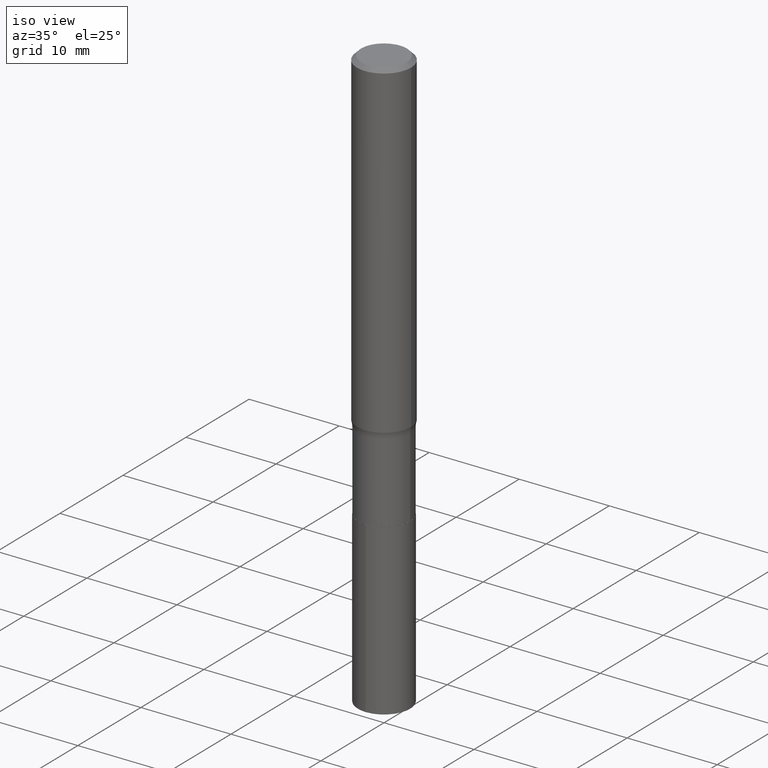
[diagram: clean part render]
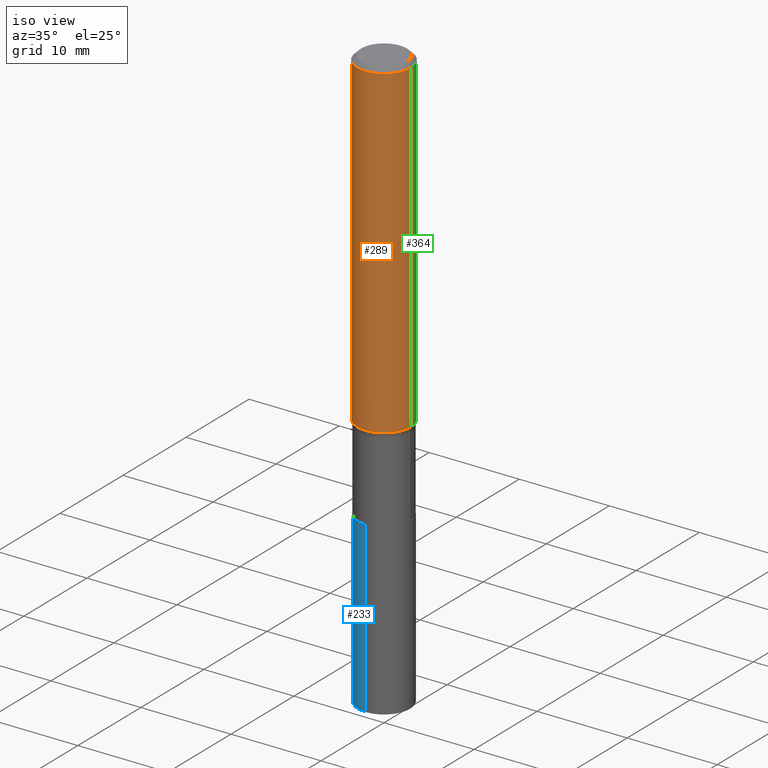
[diagram: same view with three faces highlighted in distinct colors, each labeled with its STEP entity id]
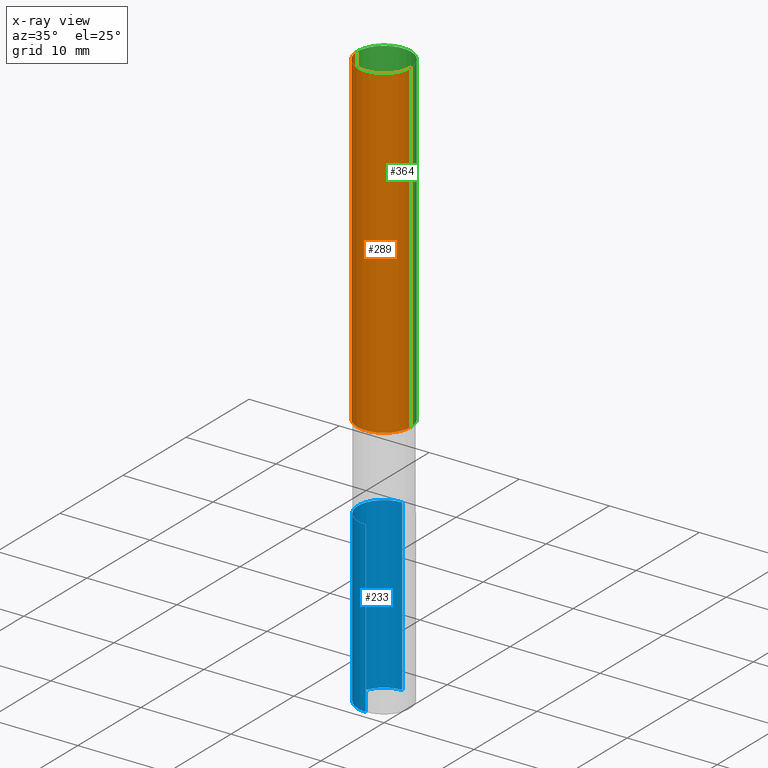
[diagram: x-ray of the same camera — body ghosted, the three highlighted faces saturated]
A machine part, iso view with three faces highlighted in distinct colors.
The next image is the same camera in x-ray (body ghosted, the three faces saturated) — at least one of them is partly hidden behind the body in this view.
Their STEP definitions:

[orange] entity #289 — the highlighted cylindrical surface (edge-blend (fillet) strip) has radius 2.9997 mm, axis along (-0, 0, 1).
#12 = ORIENTED_EDGE ( 'NONE', *, *, #22, .F. ) ;
#19 = EDGE_CURVE ( 'NONE', #165, #320, #316, .T. ) ;
#22 = EDGE_CURVE ( 'NONE', #231, #83, #275, .T. ) ;
#33 = DIRECTION ( 'NONE',  ( -2.445468806185136597E-29, 3.491481338843145583E-15, 1.000000000000000000 ) ) ;
#43 = CARTESIAN_POINT ( 'NONE',  ( 3.514854974773711668E-29, -5.018281370886292048E-15, -1.437292909189378687 ) ) ;
#55 = AXIS2_PLACEMENT_3D ( 'NONE', #381, #33, #345 ) ;
#80 = DIRECTION ( 'NONE',  ( 1.000000000000000000, -6.982962677686266711E-15, 4.876176775795936353E-29 ) ) ;
#83 = VERTEX_POINT ( 'NONE', #250 ) ;
#95 = ORIENTED_EDGE ( 'NONE', *, *, #491, .F. ) ;
#96 = AXIS2_PLACEMENT_3D ( 'NONE', #43, #310, #460 ) ;
#119 = EDGE_LOOP ( 'NONE', ( #12, #478, #238, #95 ) ) ;
#122 = VECTOR ( 'NONE', #467, 39.37007874015748143 ) ;
#125 = CARTESIAN_POINT ( 'NONE',  ( 0.1181000000000000799, -8.246878922347486570E-16, 5.758764772215004644E-30 ) ) ;
#129 = CARTESIAN_POINT ( 'NONE',  ( 0.000000000000000000, 0.000000000000000000, 0.000000000000000000 ) ) ;
#132 = CARTESIAN_POINT ( 'NONE',  ( 0.1180999999999999966, -8.865394841523547570E-16, -0.01771500000000010913 ) ) ;
#165 = VERTEX_POINT ( 'NONE', #409 ) ;
#231 = VERTEX_POINT ( 'NONE', #332 ) ;
#238 = ORIENTED_EDGE ( 'NONE', *, *, #19, .T. ) ;
#240 = DIRECTION ( 'NONE',  ( -2.445468806185136597E-29, 3.491481338843145583E-15, 1.000000000000000000 ) ) ;
#250 = CARTESIAN_POINT ( 'NONE',  ( -0.1180999999999999966, -1.700915510469269743E-15, -0.01771500000000010913 ) ) ;
#271 = CIRCLE ( 'NONE', #55, 0.1180999999999999966 ) ;
#275 = LINE ( 'NONE', #342, #371 ) ;
#289 = ADVANCED_FACE ( 'NONE', ( #424 ), #321, .T. ) ;
#310 = DIRECTION ( 'NONE',  ( -2.445468806185136597E-29, 3.491481338843145583E-15, 1.000000000000000000 ) ) ;
#316 = LINE ( 'NONE', #125, #122 ) ;
#320 = VERTEX_POINT ( 'NONE', #132 ) ;
#321 = CYLINDRICAL_SURFACE ( 'NONE', #385, 0.1181000000000000799 ) ;
#332 = CARTESIAN_POINT ( 'NONE',  ( -0.1181000000000001354, -4.179130399953612273E-15, -1.437292909189378687 ) ) ;
#342 = CARTESIAN_POINT ( 'NONE',  ( -0.1181000000000000799, 8.391509709326788873E-16, -5.809262341591047988E-30 ) ) ;
#344 = DIRECTION ( 'NONE',  ( -2.445468806185136877E-29, 3.491481338843145188E-15, 1.000000000000000000 ) ) ;
#345 = DIRECTION ( 'NONE',  ( 1.000000000000000000, -6.982962677686266711E-15, 0.000000000000000000 ) ) ;
#371 = VECTOR ( 'NONE', #344, 39.37007874015748143 ) ;
#381 = CARTESIAN_POINT ( 'NONE',  ( 4.332147990156996744E-31, -6.185159191760670395E-17, -0.01771500000000010913 ) ) ;
#383 = EDGE_CURVE ( 'NONE', #231, #165, #422, .T. ) ;
#385 = AXIS2_PLACEMENT_3D ( 'NONE', #129, #240, #80 ) ;
#409 = CARTESIAN_POINT ( 'NONE',  ( 0.1181000000000001354, -5.842969263121040310E-15, -1.437292909189378687 ) ) ;
#422 = CIRCLE ( 'NONE', #96, 0.1181000000000001632 ) ;
#424 = FACE_OUTER_BOUND ( 'NONE', #119, .T. ) ;
#460 = DIRECTION ( 'NONE',  ( 1.000000000000000000, -6.982962677686263555E-15, 0.000000000000000000 ) ) ;
#467 = DIRECTION ( 'NONE',  ( -2.445468806185136877E-29, 3.491481338843145188E-15, 1.000000000000000000 ) ) ;
#478 = ORIENTED_EDGE ( 'NONE', *, *, #383, .T. ) ;
#491 = EDGE_CURVE ( 'NONE', #83, #320, #271, .T. ) ;

[blue] entity #233 — the highlighted cylindrical surface (edge-blend (fillet) strip) has radius 2.8994 mm, axis along (-0, 0, 1).
#1 = ORIENTED_EDGE ( 'NONE', *, *, #380, .F. ) ;
#27 = DIRECTION ( 'NONE',  ( -2.431437355357483089E-29, 3.511575175048929728E-15, 1.000000000000000000 ) ) ;
#40 = CARTESIAN_POINT ( 'NONE',  ( 4.428744008001282238E-29, -6.323072704644935995E-15, -1.810999999999999943 ) ) ;
#48 = LINE ( 'NONE', #396, #168 ) ;
#69 = DIRECTION ( 'NONE',  ( -6.982962677686265922E-15, -1.000000000000000000, 4.786417860121354194E-15 ) ) ;
#78 = AXIS2_PLACEMENT_3D ( 'NONE', #193, #124, #433 ) ;
#86 = CYLINDRICAL_SURFACE ( 'NONE', #78, 0.1141500000000000015 ) ;
#104 = CIRCLE ( 'NONE', #439, 0.1141500000000000015 ) ;
#112 = CARTESIAN_POINT ( 'NONE',  ( 8.110845328702167912E-16, 0.1141499999999911197, -2.552280406320917905 ) ) ;
#115 = DIRECTION ( 'NONE',  ( -2.431437355357483089E-29, 3.511575175048930123E-15, 1.000000000000000000 ) ) ;
#124 = DIRECTION ( 'NONE',  ( -2.431437355357483089E-29, 3.511575175048930123E-15, 1.000000000000000000 ) ) ;
#155 = ORIENTED_EDGE ( 'NONE', *, *, #213, .T. ) ;
#164 = EDGE_LOOP ( 'NONE', ( #1, #155, #429, #354 ) ) ;
#167 = VERTEX_POINT ( 'NONE', #486 ) ;
#168 = VECTOR ( 'NONE', #188, 39.37007874015748143 ) ;
#183 = VECTOR ( 'NONE', #27, 39.37007874015748143 ) ;
#188 = DIRECTION ( 'NONE',  ( -2.431437355357483089E-29, 3.511575175048929728E-15, 1.000000000000000000 ) ) ;
#189 = CARTESIAN_POINT ( 'NONE',  ( -7.971051896578252001E-16, -0.1141500000000089804, -2.552280406320917017 ) ) ;
#193 = CARTESIAN_POINT ( 'NONE',  ( 4.428744008001282238E-29, -6.323072704644935995E-15, -1.810999999999999943 ) ) ;
#198 = DIRECTION ( 'NONE',  ( -6.982962677686264344E-15, -1.000000000000000000, 2.393208930060677491E-15 ) ) ;
#212 = LINE ( 'NONE', #372, #183 ) ;
#213 = EDGE_CURVE ( 'NONE', #382, #434, #323, .T. ) ;
#223 = FACE_OUTER_BOUND ( 'NONE', #164, .T. ) ;
#233 = ADVANCED_FACE ( 'NONE', ( #223 ), #86, .T. ) ;
#237 = CARTESIAN_POINT ( 'NONE',  ( 8.110845328702166926E-16, 0.1141499999999936732, -1.811000000000000165 ) ) ;
#262 = EDGE_CURVE ( 'NONE', #362, #167, #104, .T. ) ;
#284 = EDGE_CURVE ( 'NONE', #434, #167, #48, .T. ) ;
#312 = AXIS2_PLACEMENT_3D ( 'NONE', #484, #115, #69 ) ;
#323 = CIRCLE ( 'NONE', #312, 0.1141500000000000153 ) ;
#354 = ORIENTED_EDGE ( 'NONE', *, *, #262, .F. ) ;
#362 = VERTEX_POINT ( 'NONE', #237 ) ;
#372 = CARTESIAN_POINT ( 'NONE',  ( 8.110845328701984502E-16, 0.1141499999999936732, -1.811000000000000165 ) ) ;
#380 = EDGE_CURVE ( 'NONE', #382, #362, #212, .T. ) ;
#382 = VERTEX_POINT ( 'NONE', #112 ) ;
#394 = DIRECTION ( 'NONE',  ( -2.431437355357483089E-29, 3.511575175048930123E-15, 1.000000000000000000 ) ) ;
#396 = CARTESIAN_POINT ( 'NONE',  ( -7.971051896578428509E-16, -0.1141500000000063159, -1.810999999999999721 ) ) ;
#429 = ORIENTED_EDGE ( 'NONE', *, *, #284, .T. ) ;
#433 = DIRECTION ( 'NONE',  ( -6.982962677686264344E-15, -1.000000000000000000, 2.393208930060677491E-15 ) ) ;
#434 = VERTEX_POINT ( 'NONE', #189 ) ;
#439 = AXIS2_PLACEMENT_3D ( 'NONE', #40, #394, #198 ) ;
#484 = CARTESIAN_POINT ( 'NONE',  ( 6.231120878724535395E-29, -8.926134577231654880E-15, -2.552280406320917461 ) ) ;
#486 = CARTESIAN_POINT ( 'NONE',  ( -7.971051896578428509E-16, -0.1141500000000063159, -1.810999999999999721 ) ) ;

[green] entity #364 — the highlighted cylindrical surface (edge-blend (fillet) strip) has radius 2.9997 mm, axis along (-0, 0, 1).
#11 = ORIENTED_EDGE ( 'NONE', *, *, #485, .F. ) ;
#19 = EDGE_CURVE ( 'NONE', #165, #320, #316, .T. ) ;
#22 = EDGE_CURVE ( 'NONE', #231, #83, #275, .T. ) ;
#73 = CIRCLE ( 'NONE', #187, 0.1181000000000001632 ) ;
#83 = VERTEX_POINT ( 'NONE', #250 ) ;
#106 = AXIS2_PLACEMENT_3D ( 'NONE', #359, #163, #317 ) ;
#122 = VECTOR ( 'NONE', #467, 39.37007874015748143 ) ;
#125 = CARTESIAN_POINT ( 'NONE',  ( 0.1181000000000000799, -8.246878922347486570E-16, 5.758764772215004644E-30 ) ) ;
#132 = CARTESIAN_POINT ( 'NONE',  ( 0.1180999999999999966, -8.865394841523547570E-16, -0.01771500000000010913 ) ) ;
#144 = EDGE_CURVE ( 'NONE', #165, #231, #73, .T. ) ;
#154 = AXIS2_PLACEMENT_3D ( 'NONE', #343, #451, #415 ) ;
#163 = DIRECTION ( 'NONE',  ( -2.445468806185136597E-29, 3.491481338843145583E-15, 1.000000000000000000 ) ) ;
#165 = VERTEX_POINT ( 'NONE', #409 ) ;
#187 = AXIS2_PLACEMENT_3D ( 'NONE', #438, #337, #445 ) ;
#194 = ORIENTED_EDGE ( 'NONE', *, *, #22, .T. ) ;
#197 = CYLINDRICAL_SURFACE ( 'NONE', #106, 0.1181000000000000799 ) ;
#231 = VERTEX_POINT ( 'NONE', #332 ) ;
#250 = CARTESIAN_POINT ( 'NONE',  ( -0.1180999999999999966, -1.700915510469269743E-15, -0.01771500000000010913 ) ) ;
#275 = LINE ( 'NONE', #342, #371 ) ;
#311 = ORIENTED_EDGE ( 'NONE', *, *, #144, .T. ) ;
#316 = LINE ( 'NONE', #125, #122 ) ;
#317 = DIRECTION ( 'NONE',  ( 1.000000000000000000, -6.982962677686266711E-15, 4.876176775795936353E-29 ) ) ;
#320 = VERTEX_POINT ( 'NONE', #132 ) ;
#332 = CARTESIAN_POINT ( 'NONE',  ( -0.1181000000000001354, -4.179130399953612273E-15, -1.437292909189378687 ) ) ;
#337 = DIRECTION ( 'NONE',  ( -2.445468806185136597E-29, 3.491481338843145583E-15, 1.000000000000000000 ) ) ;
#342 = CARTESIAN_POINT ( 'NONE',  ( -0.1181000000000000799, 8.391509709326788873E-16, -5.809262341591047988E-30 ) ) ;
#343 = CARTESIAN_POINT ( 'NONE',  ( 4.332147990156996744E-31, -6.185159191760670395E-17, -0.01771500000000010913 ) ) ;
#344 = DIRECTION ( 'NONE',  ( -2.445468806185136877E-29, 3.491481338843145188E-15, 1.000000000000000000 ) ) ;
#359 = CARTESIAN_POINT ( 'NONE',  ( 0.000000000000000000, 0.000000000000000000, 0.000000000000000000 ) ) ;
#364 = ADVANCED_FACE ( 'NONE', ( #393 ), #197, .T. ) ;
#371 = VECTOR ( 'NONE', #344, 39.37007874015748143 ) ;
#392 = EDGE_LOOP ( 'NONE', ( #311, #194, #11, #403 ) ) ;
#393 = FACE_OUTER_BOUND ( 'NONE', #392, .T. ) ;
#403 = ORIENTED_EDGE ( 'NONE', *, *, #19, .F. ) ;
#409 = CARTESIAN_POINT ( 'NONE',  ( 0.1181000000000001354, -5.842969263121040310E-15, -1.437292909189378687 ) ) ;
#415 = DIRECTION ( 'NONE',  ( 1.000000000000000000, -6.982962677686266711E-15, 0.000000000000000000 ) ) ;
#438 = CARTESIAN_POINT ( 'NONE',  ( 3.514854974773711668E-29, -5.018281370886292048E-15, -1.437292909189378687 ) ) ;
#440 = CIRCLE ( 'NONE', #154, 0.1180999999999999966 ) ;
#445 = DIRECTION ( 'NONE',  ( 1.000000000000000000, -6.982962677686263555E-15, 0.000000000000000000 ) ) ;
#451 = DIRECTION ( 'NONE',  ( -2.445468806185136597E-29, 3.491481338843145583E-15, 1.000000000000000000 ) ) ;
#467 = DIRECTION ( 'NONE',  ( -2.445468806185136877E-29, 3.491481338843145188E-15, 1.000000000000000000 ) ) ;
#485 = EDGE_CURVE ( 'NONE', #320, #83, #440, .T. ) ;